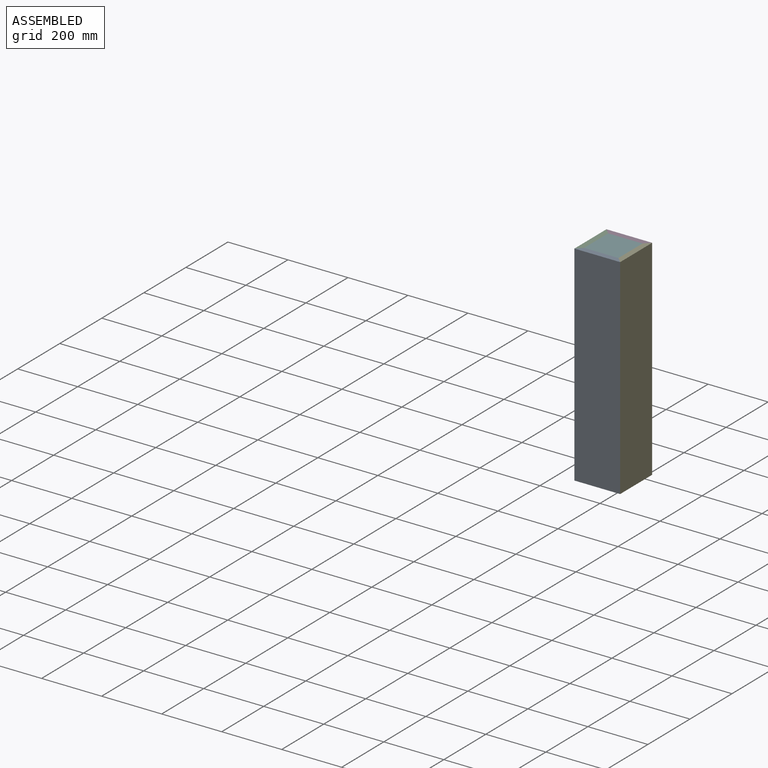
[diagram: assembled view]
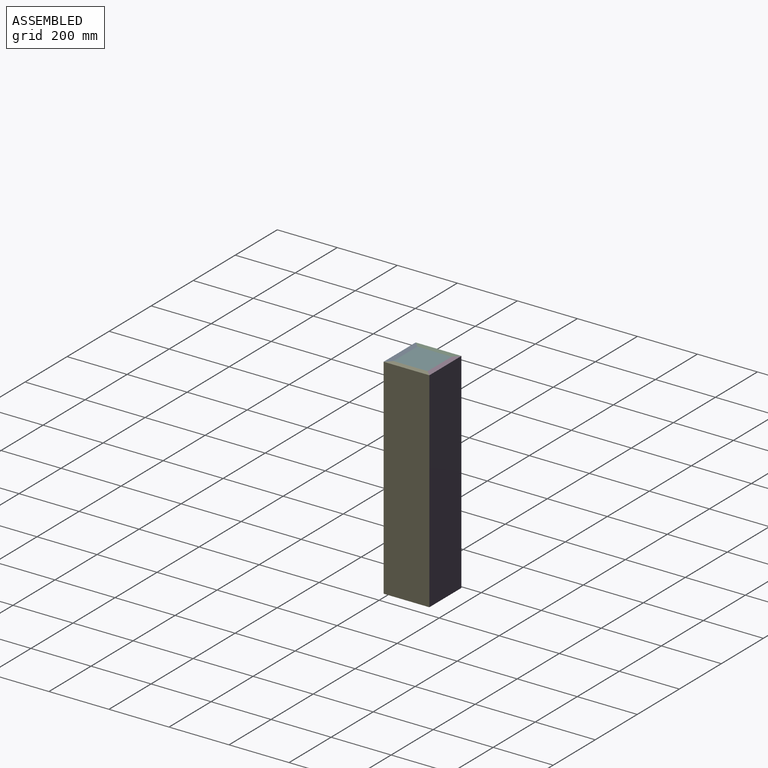
[diagram: assembled view, second angle]
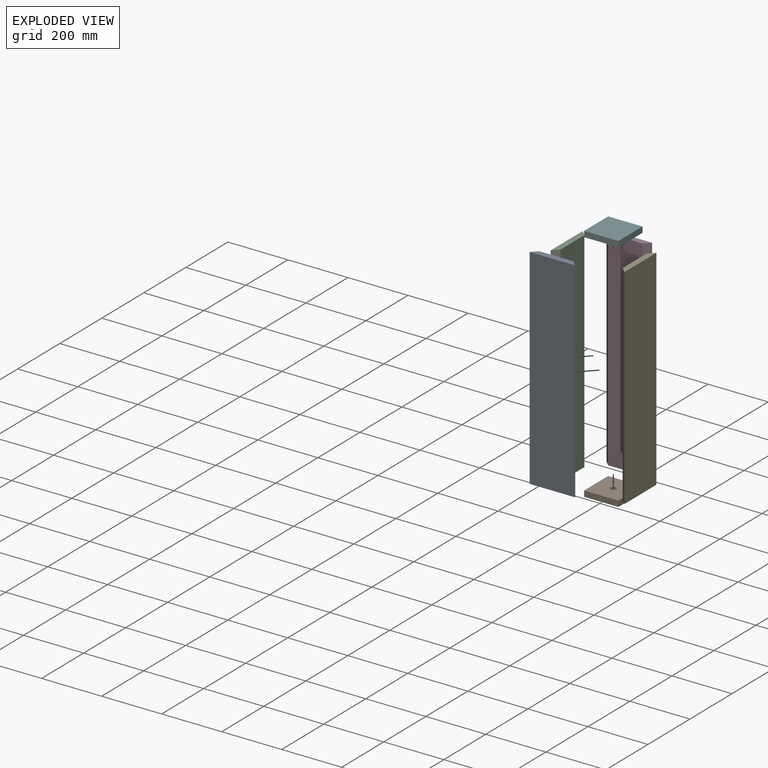
[diagram: exploded view]
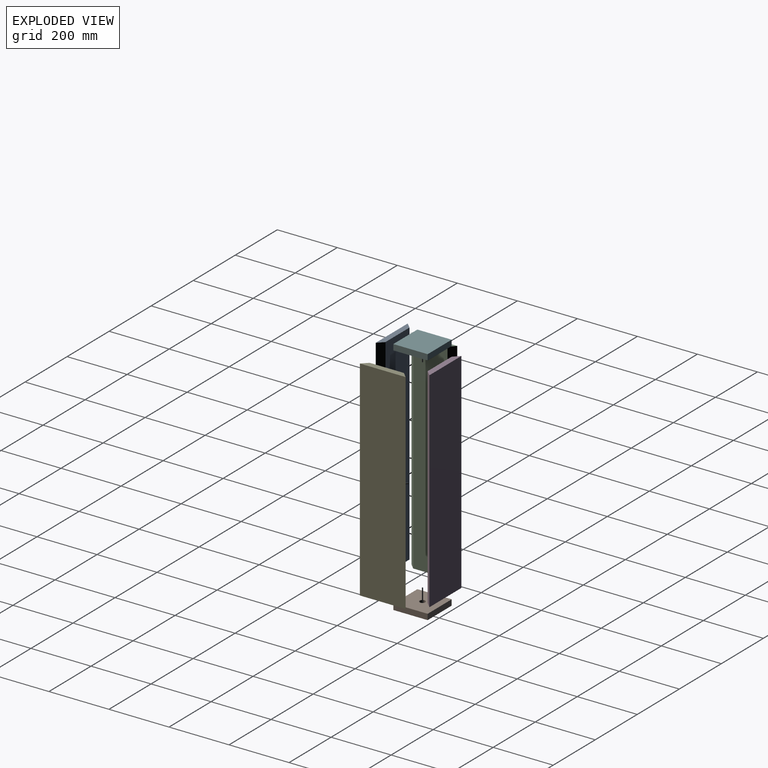
[diagram: exploded view, second angle]
ASSEMBLY  parts=6 mates=5
PART A: 6 faces, bbox 152.4x19.1x698.5 mm
  f0: plane 152.4x19.05mm, normal (0,0,1), area 2540.3mm2, adj f2,f3,f4,f5
  f1: plane 152.4x19.05mm, normal (0,0,-1), area 2540.3mm2, adj f2,f3,f4,f5
  f2: plane 698.5x114.3mm, normal (0,-1,0), area 79838.6mm2, adj f0,f1,f4,f5
  f3: plane 698.5x152.4mm, normal (0,1,0), area 106451.4mm2, adj f0,f1,f4,f5
  f4: plane 698.5x19.05mm, normal (-0.71,-0.71,0), area 18818.1mm2, adj f0,f1,f2,f3
  f5: plane 698.5x19.05mm, normal (0.71,-0.71,0), area 18818.1mm2, adj f0,f1,f2,f3
PART B: 7 faces, bbox 114.3x114.3x19.1 mm
  f0: plane 114.3x19.05mm, normal (1,0,0), area 2177.4mm2, adj f1,f3,f4,f5
  f1: plane 114.3x19.05mm, normal (0,1,0), area 2177.4mm2, adj f0,f2,f4,f5
  f2: plane 114.3x19.05mm, normal (-1,0,0), area 2177.4mm2, adj f1,f3,f4,f5
  f3: plane 114.3x19.05mm, normal (0,-1,0), area 2177.4mm2, adj f0,f2,f4,f5
  f4: plane 114.3x114.3mm, normal (0,0,-1), area 12779.5mm2, adj f0,f1,f2,f3,f6
  f5: plane 114.3x114.3mm, normal (0,0,1), area 12779.5mm2, adj f0,f1,f2,f3,f6
  f6: cylinder r=9.53mm len=19.05mm, axis (0,0,1), area 1140.1mm2, adj f4,f5
PART C: same geometry as A
PART D: same geometry as A
PART E: same geometry as A
PART F: 6 faces, bbox 114.3x114.3x19.1 mm
  f0: plane 114.3x19.05mm, normal (1,0,0), area 2177.4mm2, adj f1,f3,f4,f5
  f1: plane 114.3x19.05mm, normal (0,1,0), area 2177.4mm2, adj f0,f2,f4,f5
  f2: plane 114.3x19.05mm, normal (-1,0,0), area 2177.4mm2, adj f1,f3,f4,f5
  f3: plane 114.3x19.05mm, normal (0,-1,0), area 2177.4mm2, adj f0,f2,f4,f5
  f4: plane 114.3x114.3mm, normal (0,0,-1), area 13064.5mm2, adj f0,f1,f2,f3
  f5: plane 114.3x114.3mm, normal (0,0,1), area 13064.5mm2, adj f0,f1,f2,f3
PLACE A rot(axis=(0,0,1),180deg) t=(55.91,-92.52,-72.15)mm
PLACE B t=(55.91,-16.32,-402.35)mm
PLACE C rot(axis=(0,0,1),90deg) t=(-20.29,-16.32,-72.15)mm
PLACE D t=(55.91,59.88,-72.15)mm
PLACE E rot(axis=(0,0,-1),90deg) t=(132.11,-16.32,-72.15)mm
PLACE F t=(55.91,-16.32,277.1)mm
MATE fastened D.f4 <-> C.f5  axis (-0.71,-0.71,0) through (-10.77,50.35,-72.15)mm
MATE fastened A.f4 <-> E.f5  axis (0.71,0.71,0) through (122.58,-83,-72.15)mm
MATE fastened B.f4 <-> C.f1  axis (0,0,-1) through (-1.24,-16.32,-421.4)mm
MATE fastened D.f5 <-> E.f4  axis (0.71,-0.71,0) through (122.58,50.35,-72.15)mm
MATE fastened F.f5 <-> D.f0  axis (0,0,1) through (55.91,40.83,277.1)mm
